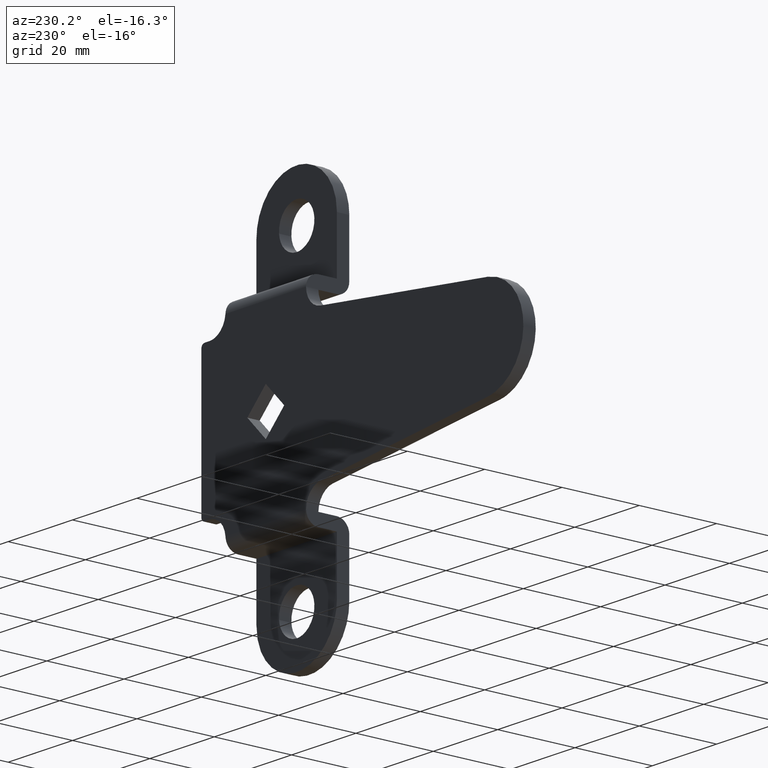
[diagram: clean part render]
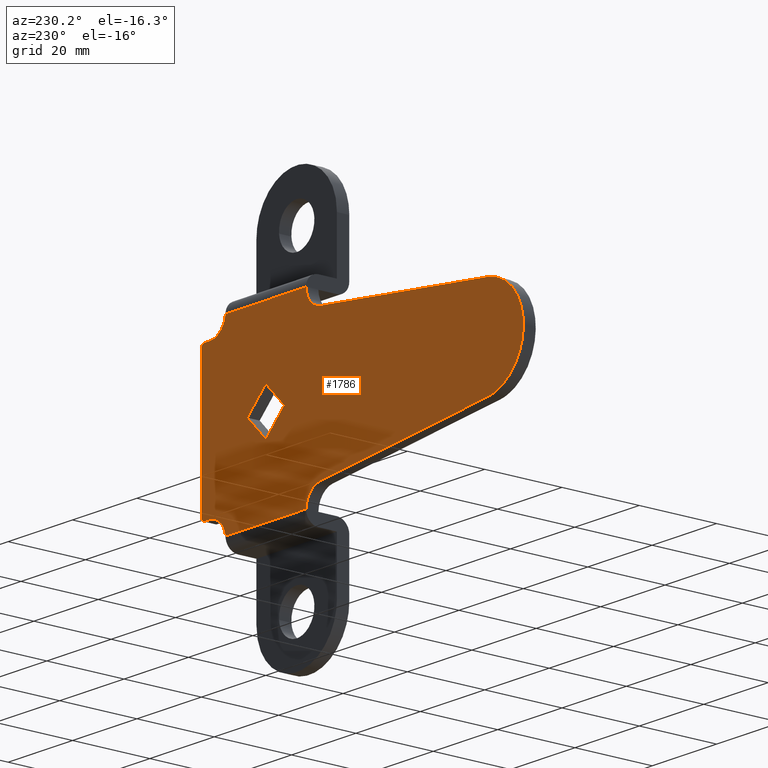
[diagram: same view with one face highlighted and labeled with its STEP entity id]
A machine part, auxiliary view. The second image highlights one B-rep face of the part: STEP entity #1786.
In plain terms, the highlighted face is a freeform B-spline surface patch.
Its self-contained STEP definition (entity closure, byte-faithful):
#413=CARTESIAN_POINT('',(5.727999999999679,0.0,0.0));
#414=VERTEX_POINT('',#413);
#415=CARTESIAN_POINT('',(0.0,0.0,-5.728000000000000));
#416=VERTEX_POINT('',#415);
#417=CARTESIAN_POINT('',(5.727999999999679,0.0,0.0));
#418=CARTESIAN_POINT('',(0.0,0.0,-5.728000000000000));
#419=QUASI_UNIFORM_CURVE('',1,(#417,#418),.UNSPECIFIED.,.F.,.U.);
#420=EDGE_CURVE('',#414,#416,#419,.T.);
#449=CARTESIAN_POINT('',(0.0,0.0,5.728000000000000));
#450=VERTEX_POINT('',#449);
#451=CARTESIAN_POINT('',(0.0,0.0,5.728000000000000));
#452=CARTESIAN_POINT('',(5.727999999999679,0.0,0.0));
#453=QUASI_UNIFORM_CURVE('',1,(#451,#452),.UNSPECIFIED.,.F.,.U.);
#454=EDGE_CURVE('',#450,#414,#453,.T.);
#477=CARTESIAN_POINT('',(-5.727000000000091,0.0,0.0));
#478=VERTEX_POINT('',#477);
#479=CARTESIAN_POINT('',(-5.727000000000091,0.0,0.0));
#480=CARTESIAN_POINT('',(0.0,0.0,5.728000000000000));
#481=QUASI_UNIFORM_CURVE('',1,(#479,#480),.UNSPECIFIED.,.F.,.U.);
#482=EDGE_CURVE('',#478,#450,#481,.T.);
#505=CARTESIAN_POINT('',(0.0,0.0,-5.728000000000000));
#506=CARTESIAN_POINT('',(-5.727000000000091,0.0,0.0));
#507=QUASI_UNIFORM_CURVE('',1,(#505,#506),.UNSPECIFIED.,.F.,.U.);
#508=EDGE_CURVE('',#416,#478,#507,.T.);
#682=CARTESIAN_POINT('',(19.0,0.0,-18.500000000000000));
#683=VERTEX_POINT('',#682);
#689=CARTESIAN_POINT('',(20.0,0.0,-17.500000000000000));
#690=VERTEX_POINT('',#689);
#691=CARTESIAN_POINT('',(20.0,0.0,-17.500000000000000));
#692=CARTESIAN_POINT('',(19.999999999999996,0.0,-18.500000000000000));
#693=CARTESIAN_POINT('',(19.0,0.0,-18.500000000000000));
#701=(BOUNDED_CURVE()B_SPLINE_CURVE(2,(#691,#692,#693),.UNSPECIFIED.,.F.,.U.)CURVE()GEOMETRIC_REPRESENTATION_ITEM()QUASI_UNIFORM_CURVE()RATIONAL_B_SPLINE_CURVE((1.0,0.707106781186548,1.0))REPRESENTATION_ITEM(''));
#702=EDGE_CURVE('',#690,#683,#701,.T.);
#775=CARTESIAN_POINT('',(-16.953000102619502,0.0,-18.134999988712799));
#776=VERTEX_POINT('',#775);
#782=CARTESIAN_POINT('',(-12.501095239808000,0.0,-23.0));
#783=VERTEX_POINT('',#782);
#784=CARTESIAN_POINT('',(-16.953000102619502,0.0,-18.134999988712789));
#785=CARTESIAN_POINT('',(-12.592904671233178,0.0,-18.614570584797200));
#786=CARTESIAN_POINT('',(-12.501095239807981,0.0,-23.0));
#794=(BOUNDED_CURVE()B_SPLINE_CURVE(2,(#784,#785,#786),.UNSPECIFIED.,.F.,.U.)CURVE()GEOMETRIC_REPRESENTATION_ITEM()QUASI_UNIFORM_CURVE()RATIONAL_B_SPLINE_CURVE((1.0,0.751702264617140,1.0))REPRESENTATION_ITEM(''));
#795=EDGE_CURVE('',#776,#783,#794,.T.);
#821=CARTESIAN_POINT('',(12.525062814466899,0.0,-23.0));
#822=VERTEX_POINT('',#821);
#823=CARTESIAN_POINT('',(17.500000000000000,0.0,-18.500000000000000));
#824=VERTEX_POINT('',#823);
#825=CARTESIAN_POINT('',(12.525062814466899,0.0,-23.0));
#826=CARTESIAN_POINT('',(12.977329831333547,0.0,-18.500000000000007));
#827=CARTESIAN_POINT('',(17.500000000000000,0.0,-18.500000000000000));
#835=(BOUNDED_CURVE()B_SPLINE_CURVE(2,(#825,#826,#827),.UNSPECIFIED.,.F.,.U.)CURVE()GEOMETRIC_REPRESENTATION_ITEM()QUASI_UNIFORM_CURVE()RATIONAL_B_SPLINE_CURVE((1.0,0.741619848709566,1.0))REPRESENTATION_ITEM(''));
#836=EDGE_CURVE('',#822,#824,#835,.T.);
#955=CARTESIAN_POINT('',(-68.904913350384689,0.0,-12.420763883107220));
#956=VERTEX_POINT('',#955);
#962=CARTESIAN_POINT('',(-16.953000102619502,0.0,-18.134999988712799));
#963=CARTESIAN_POINT('',(-68.904913350384689,0.0,-12.420763883107220));
#964=QUASI_UNIFORM_CURVE('',1,(#962,#963),.UNSPECIFIED.,.F.,.U.);
#965=EDGE_CURVE('',#776,#956,#964,.T.);
#982=CARTESIAN_POINT('',(19.0,0.0,-18.500000000000000));
#983=CARTESIAN_POINT('',(17.500000000000000,0.0,-18.500000000000000));
#984=QUASI_UNIFORM_CURVE('',1,(#982,#983),.UNSPECIFIED.,.F.,.U.);
#985=EDGE_CURVE('',#683,#824,#984,.T.);
#1012=CARTESIAN_POINT('',(20.0,0.0,17.500000000000000));
#1013=VERTEX_POINT('',#1012);
#1019=CARTESIAN_POINT('',(19.0,0.0,18.500000000000000));
#1020=VERTEX_POINT('',#1019);
#1021=CARTESIAN_POINT('',(20.0,0.0,17.500000000000000));
#1022=CARTESIAN_POINT('',(19.999999999999996,0.0,18.500000000000000));
#1023=CARTESIAN_POINT('',(19.0,0.0,18.500000000000000));
#1031=(BOUNDED_CURVE()B_SPLINE_CURVE(2,(#1021,#1022,#1023),.UNSPECIFIED.,.F.,.U.)CURVE()GEOMETRIC_REPRESENTATION_ITEM()QUASI_UNIFORM_CURVE()RATIONAL_B_SPLINE_CURVE((1.0,0.707106781186548,1.0))REPRESENTATION_ITEM(''));
#1032=EDGE_CURVE('',#1013,#1020,#1031,.T.);
#1077=CARTESIAN_POINT('',(-68.904913350384689,0.0,12.420763883107220));
#1078=VERTEX_POINT('',#1077);
#1084=CARTESIAN_POINT('',(-68.904913350384689,0.0,12.420763883107220));
#1085=CARTESIAN_POINT('',(-79.999699999999990,0.0,11.165563923874988));
#1086=CARTESIAN_POINT('',(-79.999699999999990,0.0,0.0));
#1087=CARTESIAN_POINT('',(-79.999699999999990,0.0,-11.165563923874988));
#1088=CARTESIAN_POINT('',(-68.904913350384689,0.0,-12.420763883107220));
#1096=(BOUNDED_CURVE()B_SPLINE_CURVE(2,(#1084,#1085,#1086,#1087,#1088),.UNSPECIFIED.,.F.,.U.)B_SPLINE_CURVE_WITH_KNOTS((3,2,3),(0.0,0.500000000000000,1.0),.UNSPECIFIED.)CURVE()GEOMETRIC_REPRESENTATION_ITEM()RATIONAL_B_SPLINE_CURVE((1.0,0.745793895131482,1.0,0.745793895131482,1.0))REPRESENTATION_ITEM(''));
#1097=EDGE_CURVE('',#1078,#956,#1096,.T.);
#1331=CARTESIAN_POINT('',(-16.953000102619502,0.0,18.134999988712799));
#1332=VERTEX_POINT('',#1331);
#1333=CARTESIAN_POINT('',(-12.501095239808000,0.0,23.0));
#1334=VERTEX_POINT('',#1333);
#1335=CARTESIAN_POINT('',(-16.953000102619502,0.0,18.134999988712789));
#1336=CARTESIAN_POINT('',(-12.592904671233178,0.0,18.614570584797200));
#1337=CARTESIAN_POINT('',(-12.501095239807981,0.0,23.0));
#1345=(BOUNDED_CURVE()B_SPLINE_CURVE(2,(#1335,#1336,#1337),.UNSPECIFIED.,.F.,.U.)CURVE()GEOMETRIC_REPRESENTATION_ITEM()QUASI_UNIFORM_CURVE()RATIONAL_B_SPLINE_CURVE((1.0,0.751702264617140,1.0))REPRESENTATION_ITEM(''));
#1346=EDGE_CURVE('',#1332,#1334,#1345,.T.);
#1451=CARTESIAN_POINT('',(17.500000000000000,0.0,18.500000000000000));
#1452=VERTEX_POINT('',#1451);
#1458=CARTESIAN_POINT('',(12.525062814466899,0.0,23.0));
#1459=VERTEX_POINT('',#1458);
#1460=CARTESIAN_POINT('',(12.525062814466899,0.0,23.0));
#1461=CARTESIAN_POINT('',(12.977329831333547,0.0,18.500000000000007));
#1462=CARTESIAN_POINT('',(17.500000000000000,0.0,18.500000000000000));
#1470=(BOUNDED_CURVE()B_SPLINE_CURVE(2,(#1460,#1461,#1462),.UNSPECIFIED.,.F.,.U.)CURVE()GEOMETRIC_REPRESENTATION_ITEM()QUASI_UNIFORM_CURVE()RATIONAL_B_SPLINE_CURVE((1.0,0.741619848709566,1.0))REPRESENTATION_ITEM(''));
#1471=EDGE_CURVE('',#1459,#1452,#1470,.T.);
#1489=CARTESIAN_POINT('',(-16.953000102619502,0.0,18.134999988712799));
#1490=CARTESIAN_POINT('',(-68.904913350384689,0.0,12.420763883107220));
#1491=QUASI_UNIFORM_CURVE('',1,(#1489,#1490),.UNSPECIFIED.,.F.,.U.);
#1492=EDGE_CURVE('',#1332,#1078,#1491,.T.);
#1509=CARTESIAN_POINT('',(19.0,0.0,18.500000000000000));
#1510=CARTESIAN_POINT('',(17.500000000000000,0.0,18.500000000000000));
#1511=QUASI_UNIFORM_CURVE('',1,(#1509,#1510),.UNSPECIFIED.,.F.,.U.);
#1512=EDGE_CURVE('',#1020,#1452,#1511,.T.);
#1626=CARTESIAN_POINT('',(-12.501095239808000,0.0,23.0));
#1627=CARTESIAN_POINT('',(12.525062814466899,0.0,23.0));
#1628=QUASI_UNIFORM_CURVE('',1,(#1626,#1627),.UNSPECIFIED.,.F.,.U.);
#1629=EDGE_CURVE('',#1334,#1459,#1628,.T.);
#1648=CARTESIAN_POINT('',(20.0,0.0,17.500000000000000));
#1649=CARTESIAN_POINT('',(20.0,0.0,-17.500000000000000));
#1650=QUASI_UNIFORM_CURVE('',1,(#1648,#1649),.UNSPECIFIED.,.F.,.U.);
#1651=EDGE_CURVE('',#1013,#690,#1650,.T.);
#1718=CARTESIAN_POINT('',(-12.501095239808000,0.0,-23.0));
#1719=CARTESIAN_POINT('',(12.525062814466899,0.0,-23.0));
#1720=QUASI_UNIFORM_CURVE('',1,(#1718,#1719),.UNSPECIFIED.,.F.,.U.);
#1721=EDGE_CURVE('',#783,#822,#1720,.T.);
#1759=CARTESIAN_POINT('',(-84.994687637357970,0.0,25.297699910843079));
#1760=CARTESIAN_POINT('',(-84.994687637357970,0.0,-25.297701144659221));
#1761=CARTESIAN_POINT('',(24.994987637358069,0.0,25.297699910843079));
#1762=CARTESIAN_POINT('',(24.994987637358069,0.0,-25.297701144659221));
#1763=B_SPLINE_SURFACE_WITH_KNOTS('',1,1,((#1759,#1761),(#1760,#1762)),.UNSPECIFIED.,.F.,.F.,.U.,(2,2),(2,2),(0.0,50.595401055502300),(0.0,109.989675274716010),.UNSPECIFIED.);
#1764=ORIENTED_EDGE('',*,*,#1651,.T.);
#1765=ORIENTED_EDGE('',*,*,#702,.T.);
#1766=ORIENTED_EDGE('',*,*,#985,.T.);
#1767=ORIENTED_EDGE('',*,*,#836,.F.);
#1768=ORIENTED_EDGE('',*,*,#1721,.F.);
#1769=ORIENTED_EDGE('',*,*,#795,.F.);
#1770=ORIENTED_EDGE('',*,*,#965,.T.);
#1771=ORIENTED_EDGE('',*,*,#1097,.F.);
#1772=ORIENTED_EDGE('',*,*,#1492,.F.);
#1773=ORIENTED_EDGE('',*,*,#1346,.T.);
#1774=ORIENTED_EDGE('',*,*,#1629,.T.);
#1775=ORIENTED_EDGE('',*,*,#1471,.T.);
#1776=ORIENTED_EDGE('',*,*,#1512,.F.);
#1777=ORIENTED_EDGE('',*,*,#1032,.F.);
#1778=EDGE_LOOP('',(#1764,#1765,#1766,#1767,#1768,#1769,#1770,#1771,#1772,#1773,#1774,#1775,#1776,#1777));
#1779=FACE_OUTER_BOUND('',#1778,.T.);
#1780=ORIENTED_EDGE('',*,*,#482,.F.);
#1781=ORIENTED_EDGE('',*,*,#508,.F.);
#1782=ORIENTED_EDGE('',*,*,#420,.F.);
#1783=ORIENTED_EDGE('',*,*,#454,.F.);
#1784=EDGE_LOOP('',(#1780,#1781,#1782,#1783));
#1785=FACE_BOUND('',#1784,.T.);
#1786=ADVANCED_FACE('',(#1779,#1785),#1763,.F.);